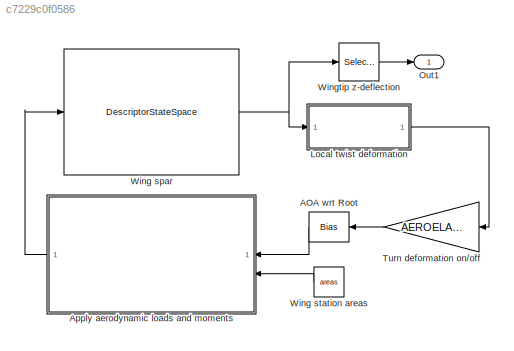
MODEL slx_c7229c0f0586
KIND model
CONFIG AbsTol = 1e-10
CONFIG EnableMultiTasking = off
CONFIG FixedStep = auto
CONFIG MaxStep = auto
CONFIG MinStep = auto
CONFIG RelTol = 1e-3
CONFIG SampleTimeConstraint = Unconstrained
CONFIG SolverName = ode15s
CONFIG StartTime = 0.0
CONFIG StopTime = 1
BLOCK [Bias] AOA wrt Root
  Bias = AOA
  SaturateOnIntegerOverflow = off
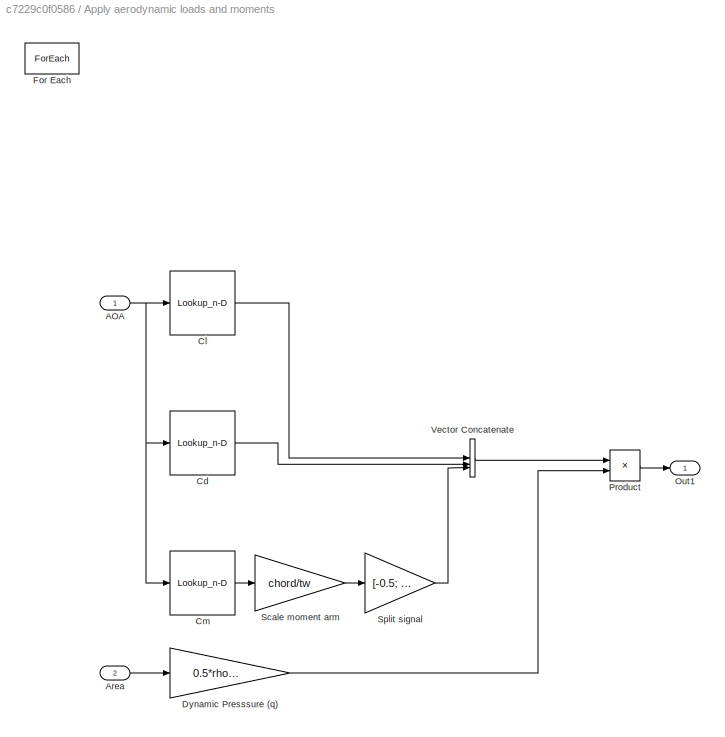
BLOCK [SubSystem] Apply aerodynamic loads and moments
  TreatAsAtomicUnit = on
BLOCK [Inport] Apply aerodynamic loads and moments/AOA
  Partition = on
  PartitionDimension = 1
  PartitionOffset = 0
  PartitionWidth = 1
BLOCK [Inport] Apply aerodynamic loads and moments/Area
  Partition = on
  PartitionDimension = 1
  PartitionOffset = 0
  PartitionWidth = 1
  Port = 2
BLOCK [Lookup_n-D] Apply aerodynamic loads and moments/Cd
  BreakpointsForDimension1 = coeffs(:,1)
  InputPortMap = u0
  InternalRulePriority = Speed
  NumberOfTableDimensions = 1
  RndMeth = Simplest
  Table = coeffs(:,3)
BLOCK [Lookup_n-D] Apply aerodynamic loads and moments/Cl
  BreakpointsForDimension1 = coeffs(:,1)
  InputPortMap = u0
  InternalRulePriority = Speed
  NumberOfTableDimensions = 1
  RndMeth = Simplest
  Table = coeffs(:,2)
BLOCK [Lookup_n-D] Apply aerodynamic loads and moments/Cm
  BreakpointsForDimension1 = coeffs(:,1)
  InputPortMap = u0
  InternalRulePriority = Speed
  NumberOfTableDimensions = 1
  RndMeth = Simplest
  Table = coeffs(:,4)
BLOCK [Gain] Apply aerodynamic loads and moments/Dynamic Presssure (q)
  Gain = 0.5*rho*Vinf*Vinf
BLOCK [ForEach] Apply aerodynamic loads and moments/For Each
  DisableCoverage = on
BLOCK [Outport] Apply aerodynamic loads and moments/Out1
  ConcatenationDimension = 1
BLOCK [Product] Apply aerodynamic loads and moments/Product
BLOCK [Gain] Apply aerodynamic loads and moments/Scale moment arm
  Gain = chord/tw
BLOCK [Gain] Apply aerodynamic loads and moments/Split signal
  Gain = [-0.5; 0.5]
BLOCK [Concatenate] Apply aerodynamic loads and moments/Vector Concatenate
  NumInputs = 3
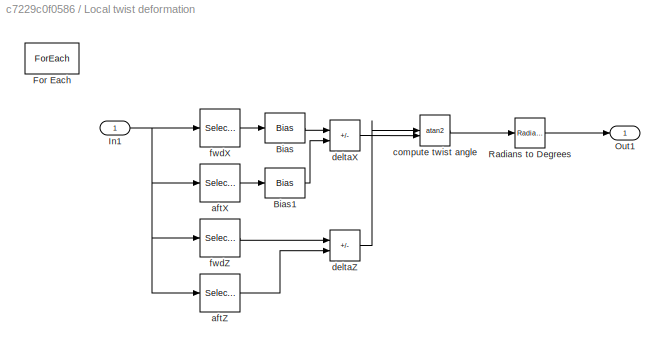
BLOCK [SubSystem] Local twist deformation
  TreatAsAtomicUnit = on
BLOCK [Bias] Local twist deformation/Bias
  Bias = +tw_sub
  SaturateOnIntegerOverflow = off
BLOCK [Bias] Local twist deformation/Bias1
  Bias = -tw_sub
  SaturateOnIntegerOverflow = off
BLOCK [ForEach] Local twist deformation/For Each
  DisableCoverage = on
BLOCK [Inport] Local twist deformation/In1
  Partition = on
  PartitionDimension = 1
  PartitionOffset = 0
  PartitionWidth = 4
BLOCK [Outport] Local twist deformation/Out1
  ConcatenationDimension = 1
BLOCK [Reference] Local twist deformation/Radians to Degrees  REF=simulink_extras/Transformations/Radians
to Degrees
  SourceBlock = simulink_extras/Transformations/Radians\nto Degrees
  SourceType = RadiansToDegrees
BLOCK [Selector] Local twist deformation/aftX
  IndexOptions = Index vector (dialog)
  Indices = 2
  InputPortWidth = 4
  OutputSizes = 1
BLOCK [Selector] Local twist deformation/aftZ
  IndexOptions = Index vector (dialog)
  Indices = 4
  InputPortWidth = 4
  OutputSizes = 1
BLOCK [Trigonometry] Local twist deformation/compute twist angle
  Operator = atan2
BLOCK [Sum] Local twist deformation/deltaX
  IconShape = rectangular
  Inputs = +-
BLOCK [Sum] Local twist deformation/deltaZ
  IconShape = rectangular
  Inputs = -+
BLOCK [Selector] Local twist deformation/fwdX
  IndexOptions = Index vector (dialog)
  Indices = 1
  InputPortWidth = 4
  OutputSizes = 1
BLOCK [Selector] Local twist deformation/fwdZ
  IndexOptions = Index vector (dialog)
  Indices = 3
  InputPortWidth = 4
  OutputSizes = 1
BLOCK [Outport] Out1
BLOCK [Gain] Turn deformation on//off
  Gain = AEROELASTIC
BLOCK [DescriptorStateSpace] Wing spar
  A = -Kode
  B = Brom
  C = Crom
  D = zeros(size(Crom,1),nIn)
  DirectFeedthrough = False
  E = Mode
  InitialCondition = 0
BLOCK [Constant] Wing station areas
  Value = areas
BLOCK [Selector] Wingtip z-deflection
  IndexOptions = Index vector (dialog)
  Indices = 4*nStations
  InputPortWidth = 4*nStations
  OutputSizes = 1
LINE AOA wrt Root:1 -> Apply aerodynamic loads and moments:1
NET Apply aerodynamic loads and moments/AOA:1 -> Apply aerodynamic loads and moments/Cd:1, Apply aerodynamic loads and moments/Cl:1, Apply aerodynamic loads and moments/Cm:1
LINE Apply aerodynamic loads and moments/Area:1 -> Apply aerodynamic loads and moments/Dynamic Presssure (q):1
LINE Apply aerodynamic loads and moments/Cd:1 -> Apply aerodynamic loads and moments/Vector Concatenate:2
LINE Apply aerodynamic loads and moments/Cl:1 -> Apply aerodynamic loads and moments/Vector Concatenate:1
LINE Apply aerodynamic loads and moments/Cm:1 -> Apply aerodynamic loads and moments/Scale moment arm:1
LINE Apply aerodynamic loads and moments/Dynamic Presssure (q):1 -> Apply aerodynamic loads and moments/Product:2
LINE Apply aerodynamic loads and moments/Product:1 -> Apply aerodynamic loads and moments/Out1:1
LINE Apply aerodynamic loads and moments/Scale moment arm:1 -> Apply aerodynamic loads and moments/Split signal:1
LINE Apply aerodynamic loads and moments/Split signal:1 -> Apply aerodynamic loads and moments/Vector Concatenate:3
LINE Apply aerodynamic loads and moments/Vector Concatenate:1 -> Apply aerodynamic loads and moments/Product:1
LINE Apply aerodynamic loads and moments:1 -> Wing spar:1
LINE Local twist deformation/Bias1:1 -> Local twist deformation/deltaX:2
LINE Local twist deformation/Bias:1 -> Local twist deformation/deltaX:1
NET Local twist deformation/In1:1 -> Local twist deformation/aftX:1, Local twist deformation/aftZ:1, Local twist deformation/fwdX:1, Local twist deformation/fwdZ:1
LINE Local twist deformation/Radians to Degrees:1 -> Local twist deformation/Out1:1
LINE Local twist deformation/aftX:1 -> Local twist deformation/Bias1:1
LINE Local twist deformation/aftZ:1 -> Local twist deformation/deltaZ:2
LINE Local twist deformation/compute twist angle:1 -> Local twist deformation/Radians to Degrees:1
LINE Local twist deformation/deltaX:1 -> Local twist deformation/compute twist angle:2
LINE Local twist deformation/deltaZ:1 -> Local twist deformation/compute twist angle:1
LINE Local twist deformation/fwdX:1 -> Local twist deformation/Bias:1
LINE Local twist deformation/fwdZ:1 -> Local twist deformation/deltaZ:1
LINE Local twist deformation:1 -> Turn deformation on//off:1
LINE Turn deformation on//off:1 -> AOA wrt Root:1
NET Wing spar:1 -> Local twist deformation:1, Wingtip z-deflection:1
LINE Wing station areas:1 -> Apply aerodynamic loads and moments:2
LINE Wingtip z-deflection:1 -> Out1:1
note: NET lines group one-source signal fan-out (src -> all destinations, sorted); 1:1 wires keep LINE
